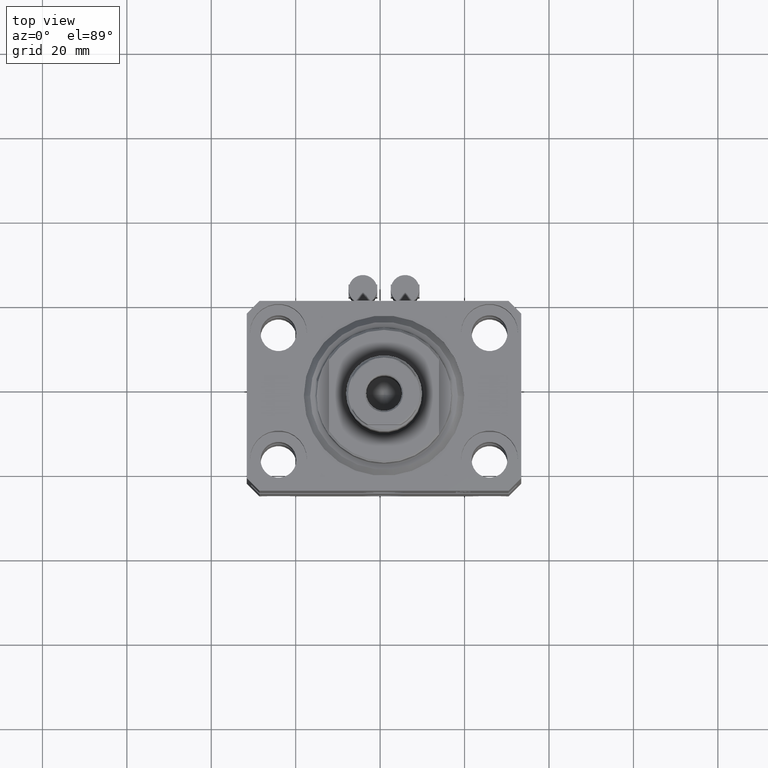
[diagram: clean part render]
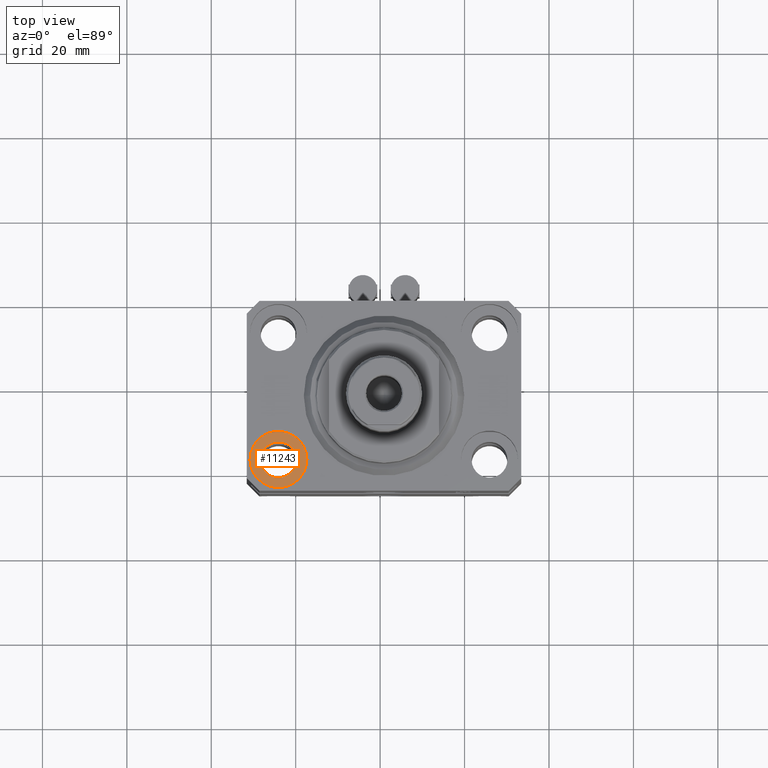
[diagram: same view with one face highlighted and labeled with its STEP entity id]
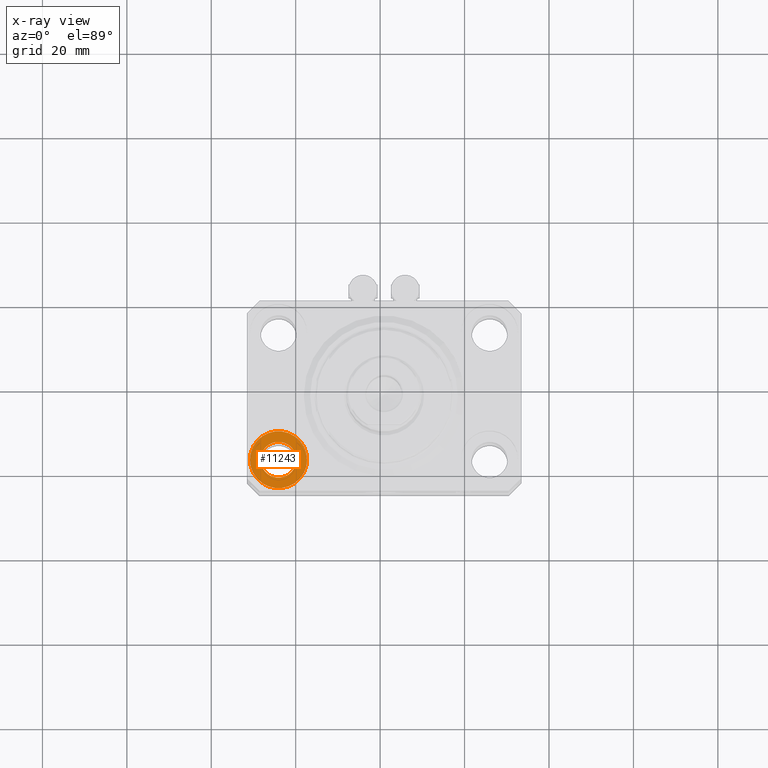
[diagram: x-ray of the same camera — body ghosted, the highlighted face saturated]
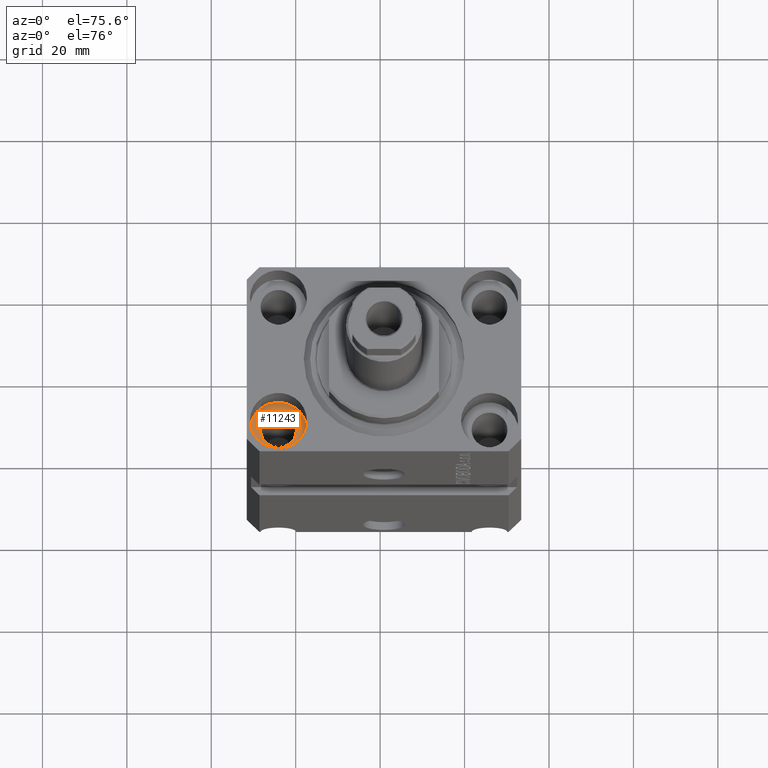
[diagram: same view with one face highlighted and labeled with its STEP entity id]
A machine part, top view. The second image highlights one B-rep face of the part: STEP entity #11243.
The next image is the same camera in x-ray: the body ghosted, the highlighted face saturated — about 0% of this face is hidden behind the body in this view.
A second angle (auxiliary view) of the same face is appended — the face is thin or edge-on in the first view.
In plain terms, the highlighted planar face has unit normal (0, 0, 1).
Its self-contained STEP definition (entity closure, byte-faithful):
#73 = DIRECTION ( 'NONE',  ( 1.000000000000000000, 0.000000000000000000, 0.000000000000000000 ) ) ;
#224 = AXIS2_PLACEMENT_3D ( 'NONE', #14636, #20830, #11216 ) ;
#1443 = EDGE_LOOP ( 'NONE', ( #21379, #3068 ) ) ;
#1461 = VERTEX_POINT ( 'NONE', #30603 ) ;
#1690 = FACE_BOUND ( 'NONE', #1443, .T. ) ;
#3068 = ORIENTED_EDGE ( 'NONE', *, *, #40286, .F. ) ;
#3529 = CARTESIAN_POINT ( 'NONE',  ( -25.00000000000000355, -15.00000000000000000, -9.000000000000000000 ) ) ;
#6458 = ORIENTED_EDGE ( 'NONE', *, *, #41113, .T. ) ;
#6479 = DIRECTION ( 'NONE',  ( 0.000000000000000000, 0.000000000000000000, 1.000000000000000000 ) ) ;
#7405 = CIRCLE ( 'NONE', #20528, 6.750000000041541881 ) ;
#7868 = ORIENTED_EDGE ( 'NONE', *, *, #30788, .T. ) ;
#7900 = AXIS2_PLACEMENT_3D ( 'NONE', #27319, #6479, #38088 ) ;
#8282 = CIRCLE ( 'NONE', #224, 6.750000000041541881 ) ;
#9883 = EDGE_CURVE ( 'NONE', #36038, #45264, #23252, .T. ) ;
#11216 = DIRECTION ( 'NONE',  ( 1.000000000000000000, 0.000000000000000000, 0.000000000000000000 ) ) ;
#11243 = ADVANCED_FACE ( 'NONE', ( #1690, #19081 ), #26183, .T. ) ;
#11936 = AXIS2_PLACEMENT_3D ( 'NONE', #3529, #20467, #73 ) ;
#14636 = CARTESIAN_POINT ( 'NONE',  ( -25.00000000000000355, -15.00000000000000000, -9.000000000000000000 ) ) ;
#18910 = AXIS2_PLACEMENT_3D ( 'NONE', #26635, #37189, #36736 ) ;
#19081 = FACE_OUTER_BOUND ( 'NONE', #23961, .T. ) ;
#20467 = DIRECTION ( 'NONE',  ( 0.000000000000000000, 0.000000000000000000, 1.000000000000000000 ) ) ;
#20528 = AXIS2_PLACEMENT_3D ( 'NONE', #36908, #29350, #40563 ) ;
#20830 = DIRECTION ( 'NONE',  ( 0.000000000000000000, 0.000000000000000000, 1.000000000000000000 ) ) ;
#21379 = ORIENTED_EDGE ( 'NONE', *, *, #9883, .F. ) ;
#23252 = CIRCLE ( 'NONE', #7900, 4.250000000041540105 ) ;
#23961 = EDGE_LOOP ( 'NONE', ( #7868, #6458 ) ) ;
#26183 = PLANE ( 'NONE',  #18910 ) ;
#26581 = CARTESIAN_POINT ( 'NONE',  ( -29.25000000004154543, -15.00000000000000000, -9.000000000000000000 ) ) ;
#26635 = CARTESIAN_POINT ( 'NONE',  ( -25.00000000000000355, -15.00000000000000000, -9.000000000000000000 ) ) ;
#27319 = CARTESIAN_POINT ( 'NONE',  ( -25.00000000000000355, -15.00000000000000000, -9.000000000000000000 ) ) ;
#29089 = CARTESIAN_POINT ( 'NONE',  ( -18.24999999995846167, -15.00000000000000000, -9.000000000000000000 ) ) ;
#29350 = DIRECTION ( 'NONE',  ( 0.000000000000000000, 0.000000000000000000, 1.000000000000000000 ) ) ;
#30603 = CARTESIAN_POINT ( 'NONE',  ( -31.75000000004154899, -15.00000000000000000, -9.000000000000000000 ) ) ;
#30788 = EDGE_CURVE ( 'NONE', #32495, #1461, #7405, .T. ) ;
#32495 = VERTEX_POINT ( 'NONE', #29089 ) ;
#34585 = CIRCLE ( 'NONE', #11936, 4.250000000041540105 ) ;
#34707 = CARTESIAN_POINT ( 'NONE',  ( -20.74999999995846522, -15.00000000000000000, -9.000000000000000000 ) ) ;
#36038 = VERTEX_POINT ( 'NONE', #34707 ) ;
#36736 = DIRECTION ( 'NONE',  ( 1.000000000000000000, 0.000000000000000000, -0.000000000000000000 ) ) ;
#36908 = CARTESIAN_POINT ( 'NONE',  ( -25.00000000000000355, -15.00000000000000000, -9.000000000000000000 ) ) ;
#37189 = DIRECTION ( 'NONE',  ( 0.000000000000000000, 0.000000000000000000, 1.000000000000000000 ) ) ;
#38088 = DIRECTION ( 'NONE',  ( 1.000000000000000000, 0.000000000000000000, 0.000000000000000000 ) ) ;
#40286 = EDGE_CURVE ( 'NONE', #45264, #36038, #34585, .T. ) ;
#40563 = DIRECTION ( 'NONE',  ( 1.000000000000000000, 0.000000000000000000, 0.000000000000000000 ) ) ;
#41113 = EDGE_CURVE ( 'NONE', #1461, #32495, #8282, .T. ) ;
#45264 = VERTEX_POINT ( 'NONE', #26581 ) ;